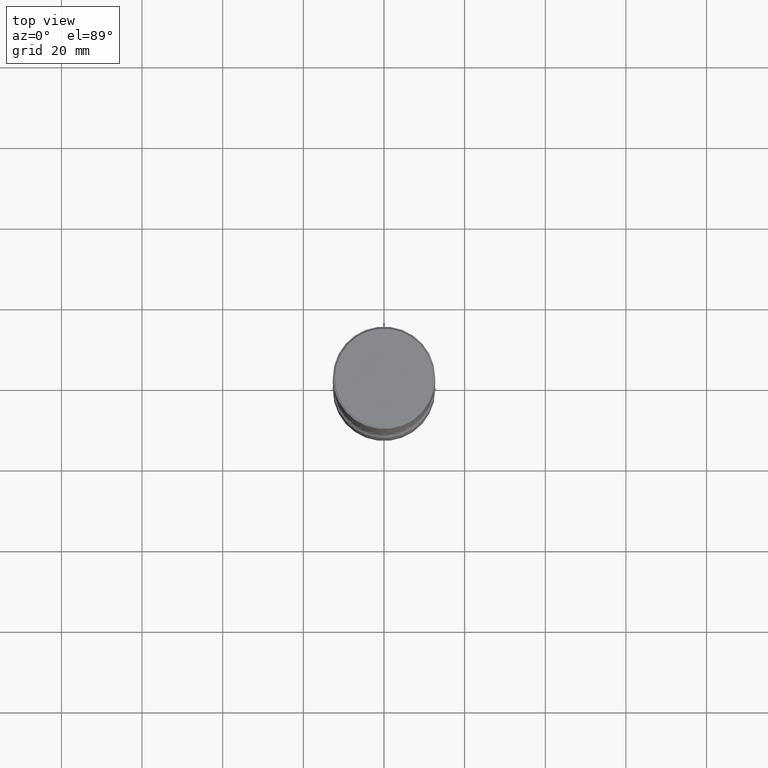
[diagram: clean part render]
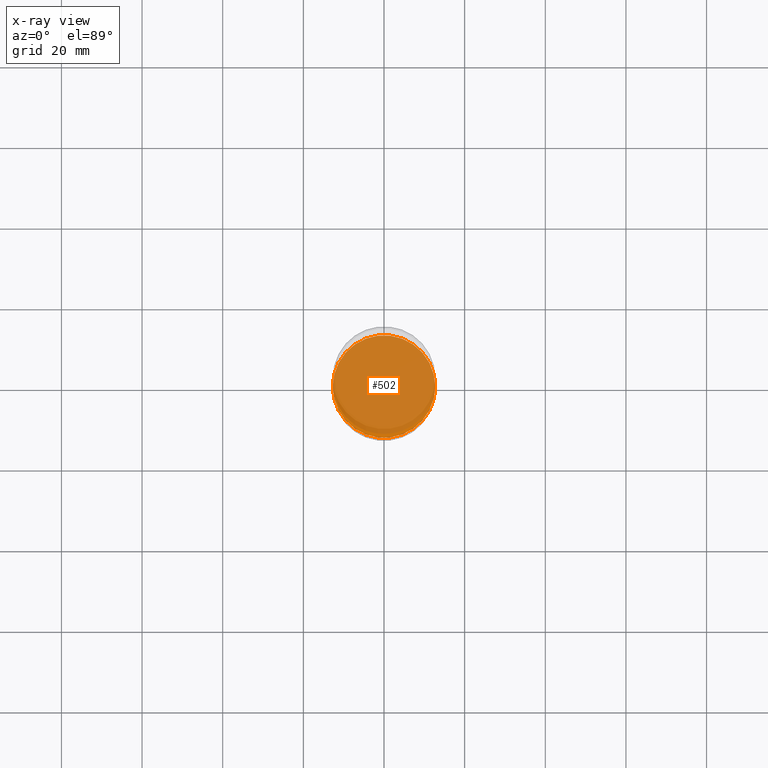
[diagram: x-ray — body ghosted, one internal face saturated and labeled with its STEP entity id]
A machine part, top view, then the same camera in x-ray: the body is ghosted and one INTERNAL B-rep face — a face not visible from any outside direction — is saturated and labeled: STEP entity #502.
In plain terms, the highlighted planar face has unit normal (0, -0, -1).
Its self-contained STEP definition (entity closure, byte-faithful):
#85 = DIRECTION ( 'NONE',  ( -1.000000000000000000, 6.982962677686265922E-15, -4.876176775795935793E-29 ) ) ;
#98 = EDGE_LOOP ( 'NONE', ( #312, #469 ) ) ;
#101 = VERTEX_POINT ( 'NONE', #218 ) ;
#122 = CARTESIAN_POINT ( 'NONE',  ( 1.222734403092568074E-28, -1.745740669421572673E-14, -4.999999999999999112 ) ) ;
#125 = PLANE ( 'NONE',  #519 ) ;
#138 = AXIS2_PLACEMENT_3D ( 'NONE', #160, #336, #426 ) ;
#153 = CARTESIAN_POINT ( 'NONE',  ( -0.5000000000000002220, -1.695973918690297853E-14, -4.999999999999999112 ) ) ;
#160 = CARTESIAN_POINT ( 'NONE',  ( 1.222734403092568074E-28, -1.745740669421572673E-14, -4.999999999999999112 ) ) ;
#218 = CARTESIAN_POINT ( 'NONE',  ( 0.5000000000000002220, -2.094888803305886009E-14, -4.999999999999999112 ) ) ;
#261 = DIRECTION ( 'NONE',  ( -2.445468806185136597E-29, 3.491481338843145583E-15, 1.000000000000000000 ) ) ;
#303 = FACE_OUTER_BOUND ( 'NONE', #98, .T. ) ;
#312 = ORIENTED_EDGE ( 'NONE', *, *, #427, .T. ) ;
#336 = DIRECTION ( 'NONE',  ( -2.445468806185136597E-29, 3.491481338843145583E-15, 1.000000000000000000 ) ) ;
#400 = CIRCLE ( 'NONE', #138, 0.5000000000000002220 ) ;
#408 = VERTEX_POINT ( 'NONE', #153 ) ;
#426 = DIRECTION ( 'NONE',  ( 1.000000000000000000, -6.982962677686263555E-15, 0.000000000000000000 ) ) ;
#427 = EDGE_CURVE ( 'NONE', #101, #408, #400, .T. ) ;
#432 = DIRECTION ( 'NONE',  ( 2.438088387897960049E-29, -3.491481338843145188E-15, -1.000000000000000000 ) ) ;
#435 = DIRECTION ( 'NONE',  ( 1.000000000000000000, -6.982962677686263555E-15, 0.000000000000000000 ) ) ;
#437 = CARTESIAN_POINT ( 'NONE',  ( 1.222734403092568074E-28, -1.745740669421572673E-14, -4.999999999999999112 ) ) ;
#448 = CIRCLE ( 'NONE', #509, 0.5000000000000002220 ) ;
#469 = ORIENTED_EDGE ( 'NONE', *, *, #496, .T. ) ;
#496 = EDGE_CURVE ( 'NONE', #408, #101, #448, .T. ) ;
#502 = ADVANCED_FACE ( 'NONE', ( #303 ), #125, .F. ) ;
#509 = AXIS2_PLACEMENT_3D ( 'NONE', #437, #261, #435 ) ;
#519 = AXIS2_PLACEMENT_3D ( 'NONE', #122, #432, #85 ) ;